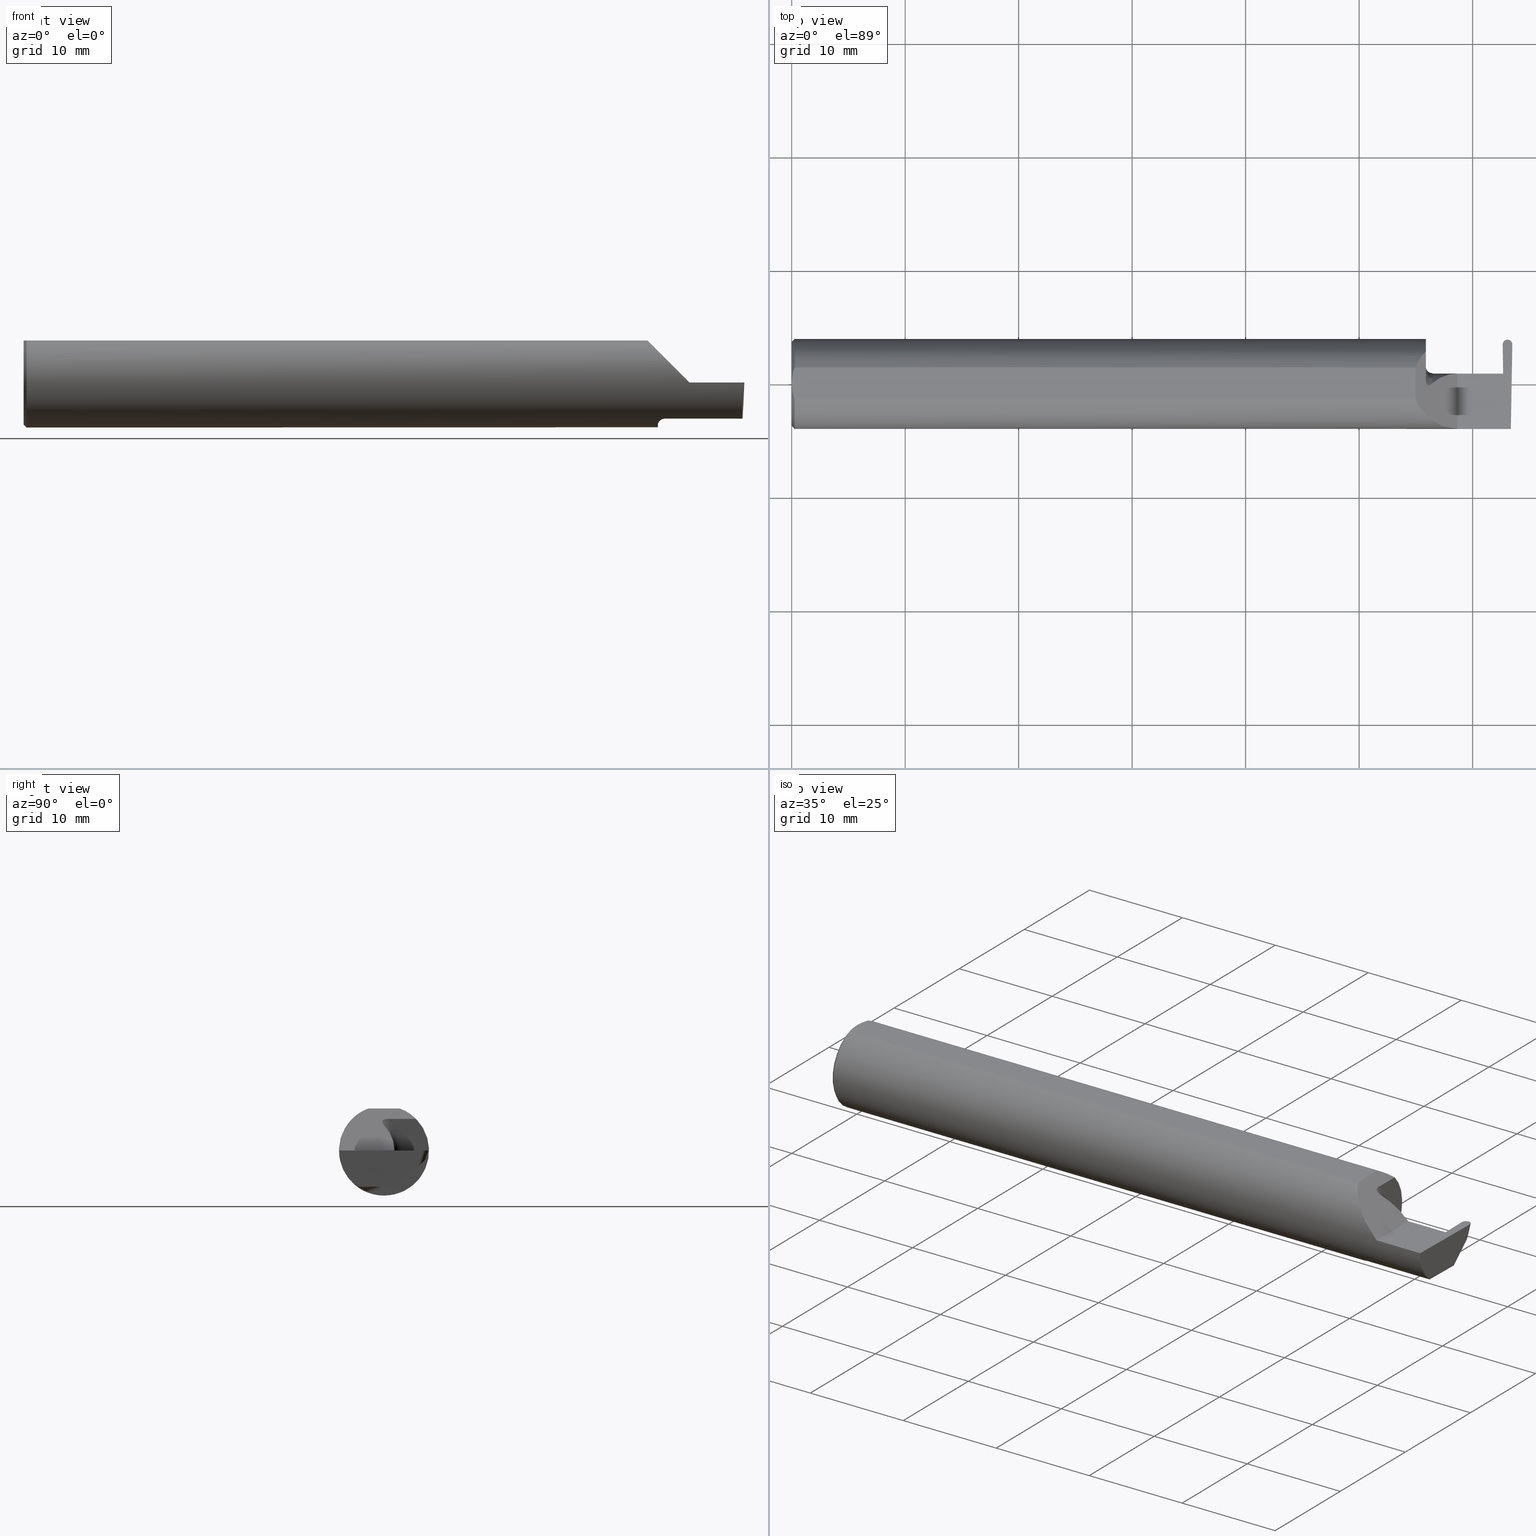
[diagram: canonical four-view strip — front | top / right | iso, engineering-drawing reading convention]
A machine part, canonical four-view strip (front | top / right | iso — engineering-drawing reading convention). The complete STEP part file that produces these views, byte-faithful:
ISO-10303-21;
HEADER;
FILE_DESCRIPTION (( 'STEP AP203' ),
    '1' );
FILE_NAME ('222020-GFR033-4.STEP',
    '2024-06-17T21:42:04',
    ( '' ),
    ( '' ),
    'SwSTEP 2.0',
    'SolidWorks 2022',
    '' );
FILE_SCHEMA (( 'CONFIG_CONTROL_DESIGN' ));
ENDSEC;

DATA;
#1 = AXIS2_PLACEMENT_3D ( 'NONE', #453, #308, #23 ) ;
#2 = APPROVAL_DATE_TIME ( #599, #58 ) ;
#3 = CARTESIAN_POINT ( 'NONE',  ( 2.202026367118635086, -0.07167964287766653841, -0.1387431844349195920 ) ) ;
#4 = CARTESIAN_POINT ( 'NONE',  ( 2.248393398721534098, 0.02424716088558254157, 0.06160660127846561557 ) ) ;
#5 = DIRECTION ( 'NONE',  ( 0.000000000000000000, 0.000000000000000000, -1.000000000000000000 ) ) ;
#6 = ORIENTED_EDGE ( 'NONE', *, *, #64, .T. ) ;
#7 = VECTOR ( 'NONE', #432, 39.37007874015748143 ) ;
#8 = APPROVAL_PERSON_ORGANIZATION ( #104, #338, #379 ) ;
#9 = CIRCLE ( 'NONE', #680, 0.1250000000000001110 ) ;
#10 = ORIENTED_EDGE ( 'NONE', *, *, #562, .T. ) ;
#11 = CARTESIAN_POINT ( 'NONE',  ( 2.499993570548677990, 0.1361256504244730825, 0.0002463248043608053605 ) ) ;
#12 = ORIENTED_EDGE ( 'NONE', *, *, #489, .F. ) ;
#13 = ADVANCED_FACE ( 'NONE', ( #222 ), #66, .T. ) ;
#14 = CARTESIAN_POINT ( 'NONE',  ( 2.200000000000000178, -0.05502817059483715301, -0.1460791239054557433 ) ) ;
#15 = ORIENTED_EDGE ( 'NONE', *, *, #540, .T. ) ;
#16 = VERTEX_POINT ( 'NONE', #208 ) ;
#17 = LINE ( 'NONE', #237, #649 ) ;
#18 = CARTESIAN_POINT ( 'NONE',  ( 2.494884149684813757, -0.1560999999999999888, 0.000000000000000000 ) ) ;
#19 = EDGE_CURVE ( 'NONE', #601, #502, #592, .T. ) ;
#20 = CARTESIAN_POINT ( 'NONE',  ( 2.494102364510032643, 0.04922584398802135747, -0.1250000000000000278 ) ) ;
#21 = ORIENTED_EDGE ( 'NONE', *, *, #645, .F. ) ;
#22 = ORIENTED_EDGE ( 'NONE', *, *, #19, .T. ) ;
#23 = DIRECTION ( 'NONE',  ( 0.000000000000000000, 0.000000000000000000, -1.000000000000000000 ) ) ;
#24 = VECTOR ( 'NONE', #497, 39.37007874015748854 ) ;
#25 = FACE_OUTER_BOUND ( 'NONE', #202, .T. ) ;
#26 = DIRECTION ( 'NONE',  ( -1.000000000000000000, -1.922274392784743754E-16, -0.000000000000000000 ) ) ;
#27 = ORIENTED_EDGE ( 'NONE', *, *, #664, .T. ) ;
#28 = DIRECTION ( 'NONE',  ( -1.000000000000000000, -1.922274392784743754E-16, -0.000000000000000000 ) ) ;
#29 = CARTESIAN_POINT ( 'NONE',  ( 0.01000000000000013205, 0.000000000000000000, -0.1560999999999999888 ) ) ;
#30 = B_SPLINE_CURVE_WITH_KNOTS ( 'NONE', 3,
 ( #174, #62, #288, #169, #165, #216, #3, #486, #230, #14 ),
 .UNSPECIFIED., .F., .F.,
 ( 4, 2, 2, 2, 4 ),
 ( 1.958690481381664333E-07, 0.0003511029445248166499, 0.0007020100200014951254, 0.001052917095478173547, 0.001403824170954851968 ),
 .UNSPECIFIED. ) ;
#31 = FACE_OUTER_BOUND ( 'NONE', #378, .T. ) ;
#32 = ORIENTED_EDGE ( 'NONE', *, *, #586, .T. ) ;
#33 = CARTESIAN_POINT ( 'NONE',  ( 0.006876379561362894709, 0.04610291843171884091, 0.1460999999999998689 ) ) ;
#34 = LINE ( 'NONE', #123, #345 ) ;
#35 = ORIENTED_EDGE ( 'NONE', *, *, #504, .F. ) ;
#36 = CARTESIAN_POINT ( 'NONE',  ( 0.000000000000000000, 0.000000000000000000, 0.000000000000000000 ) ) ;
#37 = EDGE_LOOP ( 'NONE', ( #307, #482, #397, #380, #484, #377, #465, #348, #434, #623, #35 ) ) ;
#38 = DIRECTION ( 'NONE',  ( -1.224646799147353947E-16, 0.000000000000000000, -1.000000000000000000 ) ) ;
#39 = DIRECTION ( 'NONE',  ( 1.000000000000000000, 0.000000000000000000, 0.000000000000000000 ) ) ;
#40 = ORIENTED_EDGE ( 'NONE', *, *, #671, .T. ) ;
#41 = CARTESIAN_POINT ( 'NONE',  ( -3.937007874019685528E-05, 0.1539000000000000090, 0.000000000000000000 ) ) ;
#42 = VECTOR ( 'NONE', #155, 39.37007874015748143 ) ;
#43 = LOCAL_TIME ( 14, 42, 4.000000000000000000, #60 ) ;
#44 = ADVANCED_FACE ( 'NONE', ( #581 ), #416, .T. ) ;
#45 = CARTESIAN_POINT ( 'NONE',  ( 2.171821004789464826, 0.07602423094865468078, 0.1381789952105338670 ) ) ;
#46 = DIRECTION ( 'NONE',  ( 0.000000000000000000, -0.9455185755993165131, 0.3255681544571574215 ) ) ;
#47 = APPROVAL_STATUS ( 'not_yet_approved' ) ;
#48 = CARTESIAN_POINT ( 'NONE',  ( 2.163899999999998602, -0.05497272050753934658, 0.1460999999999998411 ) ) ;
#49 =( BOUNDED_CURVE ( )  B_SPLINE_CURVE ( 3, ( #190, #297, #290, #618 ),
 .UNSPECIFIED., .F., .F. ) 
 B_SPLINE_CURVE_WITH_KNOTS ( ( 4, 4 ),
 ( 1.570796326794900999, 1.636803205333741573 ),
 .UNSPECIFIED. ) 
 CURVE ( )  GEOMETRIC_REPRESENTATION_ITEM ( )  RATIONAL_B_SPLINE_CURVE ( ( 1.000000000000000000, 0.9996369572869184816, 0.9996369572869184816, 1.000000000000000000 ) ) 
 REPRESENTATION_ITEM ( '' )  );
#50 = ADVANCED_FACE ( 'NONE', ( #423 ), #644, .T. ) ;
#51 = CARTESIAN_POINT ( 'NONE',  ( 2.200000000000000178, -0.08910000000000006803, 0.000000000000000000 ) ) ;
#52 = CARTESIAN_POINT ( 'NONE',  ( 2.472736521078112926, -0.01986741890188668466, -0.1250000000000000833 ) ) ;
#53 = AXIS2_PLACEMENT_3D ( 'NONE', #84, #462, #406 ) ;
#54 = CARTESIAN_POINT ( 'NONE',  ( 2.310000000000000053, 0.03589999999999995278, 2.326828918379970872E-17 ) ) ;
#55 = VERTEX_POINT ( 'NONE', #389 ) ;
#56 = CARTESIAN_POINT ( 'NONE',  ( 2.479355668209936692, 0.1851440141128278816, 0.09073920564873141914 ) ) ;
#57 = EDGE_LOOP ( 'NONE', ( #81, #688, #115 ) ) ;
#58 = APPROVAL ( #204, 'UNSPECIFIED' ) ;
#59 = VECTOR ( 'NONE', #647, 39.37007874015748143 ) ;
#60 = COORDINATED_UNIVERSAL_TIME_OFFSET ( 8, 0, .BEHIND. ) ;
#61 = LOCAL_TIME ( 14, 42, 4.000000000000000000, #418 ) ;
#62 = CARTESIAN_POINT ( 'NONE',  ( 2.220298065053172731, -0.09360841750841733533, -0.1249186702281521177 ) ) ;
#63 = ORIENTED_EDGE ( 'NONE', *, *, #71, .F. ) ;
#64 = EDGE_CURVE ( 'NONE', #499, #238, #354, .T. ) ;
#65 = CALENDAR_DATE ( 2024, 17, 6 ) ;
#66 = CONICAL_SURFACE ( 'NONE', #161, 0.1460999999999998411, 0.7853981633974482790 ) ;
#67 = CARTESIAN_POINT ( 'NONE',  ( 2.468866941825129224, 0.1159879026479704311, -0.05823794134005021161 ) ) ;
#68 = ORIENTED_EDGE ( 'NONE', *, *, #93, .T. ) ;
#69 = CARTESIAN_POINT ( 'NONE',  ( 2.497599438174871622, 0.1159879026479704034, -0.05823794134005024631 ) ) ;
#70 = ORIENTED_EDGE ( 'NONE', *, *, #249, .T. ) ;
#71 = EDGE_CURVE ( 'NONE', #404, #502, #393, .T. ) ;
#72 = CARTESIAN_POINT ( 'NONE',  ( 2.473181517275717223, 0.1538999999999999257, 1.831248456795955123E-17 ) ) ;
#73 = VECTOR ( 'NONE', #243, 39.37007874015748854 ) ;
#74 = LINE ( 'NONE', #557, #275 ) ;
#75 = ADVANCED_FACE ( 'NONE', ( #241 ), #402, .F. ) ;
#76 = CARTESIAN_POINT ( 'NONE',  ( 2.200000000000000178, 0.008736813796655707939, 0.1099999999999991124 ) ) ;
#77 = ORIENTED_EDGE ( 'NONE', *, *, #594, .T. ) ;
#78 = CARTESIAN_POINT ( 'NONE',  ( 0.000000000000000000, 0.000000000000000000, 0.1460999999999998689 ) ) ;
#79 = CARTESIAN_POINT ( 'NONE',  ( 2.345733190000000246, -0.09360841750841737696, -0.1249186702281520900 ) ) ;
#80 = VERTEX_POINT ( 'NONE', #543 ) ;
#81 = ORIENTED_EDGE ( 'NONE', *, *, #701, .T. ) ;
#82 = DIRECTION ( 'NONE',  ( -0.9992386149554827179, 0.01744177490282265708, 0.03489949670250104552 ) ) ;
#83 = CARTESIAN_POINT ( 'NONE',  ( 0.0009113193687670144904, -0.01867274705588957071, 0.1460999999999998411 ) ) ;
#84 = CARTESIAN_POINT ( 'NONE',  ( 0.000000000000000000, 0.000000000000000000, 0.000000000000000000 ) ) ;
#85 = EDGE_CURVE ( 'NONE', #542, #630, #129, .T. ) ;
#86 = VERTEX_POINT ( 'NONE', #29 ) ;
#87 = CARTESIAN_POINT ( 'NONE',  ( 2.200000000000000178, 0.1560999999999999888, 0.000000000000000000 ) ) ;
#88 = AXIS2_PLACEMENT_3D ( 'NONE', #134, #296, #195 ) ;
#89 = CC_DESIGN_DATE_AND_TIME_ASSIGNMENT ( #215, #590, ( #132 ) ) ;
#90 = DIRECTION ( 'NONE',  ( -0.01745240643727518845, 0.9998476951563912696, 0.000000000000000000 ) ) ;
#91 = ORIENTED_EDGE ( 'NONE', *, *, #528, .F. ) ;
#92 = CARTESIAN_POINT ( 'NONE',  ( 2.460968164375760381, 0.03569700418831855959, -0.005813039478679222008 ) ) ;
#93 = EDGE_CURVE ( 'NONE', #223, #16, #49, .T. ) ;
#94 =( CONVERSION_BASED_UNIT ( 'INCH', #156 ) LENGTH_UNIT ( ) NAMED_UNIT ( #420 ) );
#95 = CARTESIAN_POINT ( 'NONE',  ( 2.468230857848970228, 0.03589999999999995278, 0.000000000000000000 ) ) ;
#96 = AXIS2_PLACEMENT_3D ( 'NONE', #689, #440, #109 ) ;
#97 = CC_DESIGN_SECURITY_CLASSIFICATION ( #132, ( #264 ) ) ;
#98 = CARTESIAN_POINT ( 'NONE',  ( 0.01000000000000013205, -0.05497272050753933964, 0.1460999999999998689 ) ) ;
#99 = DIRECTION ( 'NONE',  ( -1.000000000000000000, -1.922274392784743754E-16, -0.000000000000000000 ) ) ;
#100 = EDGE_CURVE ( 'NONE', #244, #150, #478, .T. ) ;
#101 = DIRECTION ( 'NONE',  ( 0.000000000000000000, -0.03489949670250104552, -0.9993908270190957621 ) ) ;
#102 = APPROVAL_DATE_TIME ( #118, #338 ) ;
#103 = LINE ( 'NONE', #95, #366 ) ;
#104 = PERSON_AND_ORGANIZATION ( #309, #395 ) ;
#105 = LINE ( 'NONE', #11, #260 ) ;
#106 = ORIENTED_EDGE ( 'NONE', *, *, #419, .F. ) ;
#107 = CYLINDRICAL_SURFACE ( 'NONE', #88, 0.01680000000000000243 ) ;
#108 = AXIS2_PLACEMENT_3D ( 'NONE', #148, #179, #496 ) ;
#109 = DIRECTION ( 'NONE',  ( 0.000000000000000000, 0.000000000000000000, -1.000000000000000000 ) ) ;
#110 = ORIENTED_EDGE ( 'NONE', *, *, #528, .T. ) ;
#111 = EDGE_LOOP ( 'NONE', ( #133, #331, #311 ) ) ;
#112 =( BOUNDED_CURVE ( )  B_SPLINE_CURVE ( 3, ( #591, #4, #652, #595 ),
 .UNSPECIFIED., .F., .F. ) 
 B_SPLINE_CURVE_WITH_KNOTS ( ( 4, 4 ),
 ( 0.8230336921349832302, 1.570796326794896780 ),
 .UNSPECIFIED. ) 
 CURVE ( )  GEOMETRIC_REPRESENTATION_ITEM ( )  RATIONAL_B_SPLINE_CURVE ( ( 1.000000000000000000, 0.9539445215436042069, 0.9539445215436042069, 1.000000000000000000 ) ) 
 REPRESENTATION_ITEM ( '' )  );
#113 = DESIGN_CONTEXT ( 'detailed design', #400, 'design' ) ;
#114 = CYLINDRICAL_SURFACE ( 'NONE', #454, 0.01680000000000000243 ) ;
#115 = ORIENTED_EDGE ( 'NONE', *, *, #436, .T. ) ;
#116 = ADVANCED_FACE ( 'NONE', ( #25 ), #107, .T. ) ;
#117 = ADVANCED_FACE ( 'NONE', ( #500 ), #674, .F. ) ;
#118 = DATE_AND_TIME ( #65, #293 ) ;
#119 = CARTESIAN_POINT ( 'NONE',  ( 2.163899999999998602, -0.05497272050753934658, 0.1460999999999998411 ) ) ;
#120 = VERTEX_POINT ( 'NONE', #349 ) ;
#121 = ORIENTED_EDGE ( 'NONE', *, *, #231, .T. ) ;
#122 = CIRCLE ( 'NONE', #53, 0.1460999999999998411 ) ;
#123 = CARTESIAN_POINT ( 'NONE',  ( 2.474843960782659114, -0.09285012667669295672, -0.1250000000000000278 ) ) ;
#124 = ORIENTED_EDGE ( 'NONE', *, *, #640, .T. ) ;
#125 = ORIENTED_EDGE ( 'NONE', *, *, #191, .T. ) ;
#126 = CARTESIAN_POINT ( 'NONE',  ( 2.466300478715367284, 0.1464913464970357959, 1.915516875273380729E-17 ) ) ;
#127 = CARTESIAN_POINT ( 'NONE',  ( -6.265209250606362652E-17, 0.009396510398413125686, 0.1460999999999998689 ) ) ;
#128 = VECTOR ( 'NONE', #695, 39.37007874015748854 ) ;
#129 = LINE ( 'NONE', #343, #24 ) ;
#130 = AXIS2_PLACEMENT_3D ( 'NONE', #291, #619, #136 ) ;
#131 = CARTESIAN_POINT ( 'NONE',  ( 2.472364015489967759, 0.04922584398802139216, -0.1250000000000000278 ) ) ;
#132 = SECURITY_CLASSIFICATION ( '', '', #657 ) ;
#133 = ORIENTED_EDGE ( 'NONE', *, *, #151, .T. ) ;
#134 = CARTESIAN_POINT ( 'NONE',  ( 2.479355668209936692, 0.1692593020427593520, 0.09620875064361165963 ) ) ;
#135 = CARTESIAN_POINT ( 'NONE',  ( 2.466472809451322412, 0.1361256504244731103, 0.0002463248043607938679 ) ) ;
#136 = DIRECTION ( 'NONE',  ( 1.000000000000000000, 0.000000000000000000, -0.000000000000000000 ) ) ;
#137 = ORIENTED_EDGE ( 'NONE', *, *, #460, .F. ) ;
#138 = CARTESIAN_POINT ( 'NONE',  ( 2.468230857848970228, 0.03589999999999995278, 0.000000000000000000 ) ) ;
#139 = CARTESIAN_POINT ( 'NONE',  ( 2.466468933666375207, 0.1368405688172235068, 0.000000000000000000 ) ) ;
#140 = VERTEX_POINT ( 'NONE', #138 ) ;
#141 =( BOUNDED_CURVE ( )  B_SPLINE_CURVE ( 3, ( #376, #600, #605, #119 ),
 .UNSPECIFIED., .F., .F. ) 
 B_SPLINE_CURVE_WITH_KNOTS ( ( 4, 4 ),
 ( 4.712388980384689674, 5.923303634979667720 ),
 .UNSPECIFIED. ) 
 CURVE ( )  GEOMETRIC_REPRESENTATION_ITEM ( )  RATIONAL_B_SPLINE_CURVE ( ( 1.000000000000000000, 0.8814946008038391234, 0.8814946008038391234, 1.000000000000000000 ) ) 
 REPRESENTATION_ITEM ( '' )  );
#142 = CARTESIAN_POINT ( 'NONE',  ( 2.483396179931517178, 0.1539000000000000090, 0.000000000000000000 ) ) ;
#143 = ADVANCED_FACE ( 'NONE', ( #353 ), #550, .F. ) ;
#144 = ADVANCED_FACE ( 'NONE', ( #398 ), #312, .F. ) ;
#145 = PERSON_AND_ORGANIZATION_ROLE ( 'design_owner' ) ;
#146 = EDGE_LOOP ( 'NONE', ( #546, #438, #352, #511 ) ) ;
#147 = ORIENTED_EDGE ( 'NONE', *, *, #276, .F. ) ;
#148 = CARTESIAN_POINT ( 'NONE',  ( 2.474034498089313860, -2.440349358338679053, -0.07704551980719613613 ) ) ;
#149 =( NAMED_UNIT ( * ) SI_UNIT ( $, .STERADIAN. ) SOLID_ANGLE_UNIT ( ) );
#150 = VERTEX_POINT ( 'NONE', #142 ) ;
#151 = EDGE_CURVE ( 'NONE', #181, #574, #572, .T. ) ;
#152 = DIRECTION ( 'NONE',  ( -0.01745240643727519192, 0.9998476951563914916, -0.000000000000000000 ) ) ;
#153 = AXIS2_PLACEMENT_3D ( 'NONE', #245, #609, #615 ) ;
#154 = DIRECTION ( 'NONE',  ( -1.000000000000000000, -1.922274392784743754E-16, -0.000000000000000000 ) ) ;
#155 = DIRECTION ( 'NONE',  ( 1.000000000000000000, -0.000000000000000000, -0.000000000000000000 ) ) ;
#156 = LENGTH_MEASURE_WITH_UNIT ( LENGTH_MEASURE( 0.02539999999999999897 ), #629 );
#157 = CARTESIAN_POINT ( 'NONE',  ( 3.749399456654646757E-32, -0.1560999999999999333, 3.061616997868383634E-16 ) ) ;
#158 = AXIS2_PLACEMENT_3D ( 'NONE', #41, #46, #475 ) ;
#159 = CARTESIAN_POINT ( 'NONE',  ( 2.494884149684813757, -0.1560999999999999888, 0.000000000000000000 ) ) ;
#160 = LINE ( 'NONE', #698, #519 ) ;
#161 = AXIS2_PLACEMENT_3D ( 'NONE', #217, #425, #5 ) ;
#162 = CARTESIAN_POINT ( 'NONE',  ( 2.468075038322403714, 0.1311060022846998185, -0.04311984170332067851 ) ) ;
#163 = APPROVAL_PERSON_ORGANIZATION ( #691, #58, #479 ) ;
#164 = COORDINATED_UNIVERSAL_TIME_OFFSET ( 8, 0, .BEHIND. ) ;
#165 = CARTESIAN_POINT ( 'NONE',  ( 2.206963077135974949, -0.08291057444783000996, -0.1323284214741864140 ) ) ;
#166 = EDGE_LOOP ( 'NONE', ( #314, #347, #490, #683, #178, #612 ) ) ;
#167 = EDGE_CURVE ( 'NONE', #604, #234, #364, .T. ) ;
#168 = SHAPE_DEFINITION_REPRESENTATION ( #273, #459 ) ;
#169 = CARTESIAN_POINT ( 'NONE',  ( 2.209390565699349995, -0.08631243322371089099, -0.1301077001157306956 ) ) ;
#170 = ORIENTED_EDGE ( 'NONE', *, *, #641, .F. ) ;
#171 = CALENDAR_DATE ( 2024, 17, 6 ) ;
#172 = DIRECTION ( 'NONE',  ( -0.01745240643727600724, -0.9998476951563914916, 0.000000000000000000 ) ) ;
#173 = ORIENTED_EDGE ( 'NONE', *, *, #696, .T. ) ;
#174 = CARTESIAN_POINT ( 'NONE',  ( 2.225000000000000089, -0.09360841750841730757, -0.1249186702281521594 ) ) ;
#175 = EDGE_LOOP ( 'NONE', ( #77, #125, #566, #287, #124 ) ) ;
#176 = AXIS2_PLACEMENT_3D ( 'NONE', #570, #28, #189 ) ;
#177 = CARTESIAN_POINT ( 'NONE',  ( 2.225000000000000089, 0.002551513899117411211, 0.08499999999999943712 ) ) ;
#178 = ORIENTED_EDGE ( 'NONE', *, *, #381, .T. ) ;
#179 = DIRECTION ( 'NONE',  ( 0.9993699743034455407, 0.001238639365660562522, 0.03546999060124570585 ) ) ;
#180 = LINE ( 'NONE', #622, #521 ) ;
#181 = VERTEX_POINT ( 'NONE', #628 ) ;
#182 = CARTESIAN_POINT ( 'NONE',  ( 0.0009290501461040111091, 0.01879395969143608097, 0.1460999999999998689 ) ) ;
#183 = CARTESIAN_POINT ( 'NONE',  ( 2.493284862724282736, 0.1538999999999999257, -1.238434607557906304E-18 ) ) ;
#184 = AXIS2_PLACEMENT_3D ( 'NONE', #692, #414, #527 ) ;
#185 = CARTESIAN_POINT ( 'NONE',  ( 2.689688574201023918, -0.08909999999999938802, -0.1250000000000000278 ) ) ;
#186 = VECTOR ( 'NONE', #472, 39.37007874015748143 ) ;
#187 = ORIENTED_EDGE ( 'NONE', *, *, #562, .F. ) ;
#188 =( BOUNDED_CURVE ( )  B_SPLINE_CURVE ( 3, ( #686, #554, #294, #302 ),
 .UNSPECIFIED., .F., .T. ) 
 B_SPLINE_CURVE_WITH_KNOTS ( ( 4, 4 ),
 ( 3.188737678545093157, 4.698656506723038362 ),
 .UNSPECIFIED. ) 
 CURVE ( )  GEOMETRIC_REPRESENTATION_ITEM ( )  RATIONAL_B_SPLINE_CURVE ( ( 1.000000000000000000, 0.8188662370985357875, 0.8188662370985357875, 1.000000000000000000 ) ) 
 REPRESENTATION_ITEM ( '' )  );
#189 = DIRECTION ( 'NONE',  ( 1.922274392784743754E-16, -1.000000000000000000, 0.000000000000000000 ) ) ;
#190 = CARTESIAN_POINT ( 'NONE',  ( 2.483233189999999535, 0.1525290440048721052, -0.003981545313865254496 ) ) ;
#191 = EDGE_CURVE ( 'NONE', #280, #80, #74, .T. ) ;
#192 = CARTESIAN_POINT ( 'NONE',  ( 2.163899999999998602, 0.05497272050753934658, 0.1460999999999998411 ) ) ;
#193 = EDGE_CURVE ( 'NONE', #86, #234, #422, .T. ) ;
#194 = ORIENTED_EDGE ( 'NONE', *, *, #663, .F. ) ;
#195 = DIRECTION ( 'NONE',  ( 0.000000000000000000, -0.9455185755993165131, 0.3255681544571575881 ) ) ;
#196 =( BOUNDED_CURVE ( )  B_SPLINE_CURVE ( 3, ( #253, #72, #126, #339 ),
 .UNSPECIFIED., .F., .F. ) 
 B_SPLINE_CURVE_WITH_KNOTS ( ( 4, 4 ),
 ( 6.171327673818501225, 7.747253380535273237 ),
 .UNSPECIFIED. ) 
 CURVE ( )  GEOMETRIC_REPRESENTATION_ITEM ( )  RATIONAL_B_SPLINE_CURVE ( ( 1.000000000000000000, 0.8035272986452591804, 0.8035272986452591804, 1.000000000000000000 ) ) 
 REPRESENTATION_ITEM ( '' )  );
#197 = DIRECTION ( 'NONE',  ( -1.000000000000000000, -0.000000000000000000, -0.000000000000000000 ) ) ;
#198 = CARTESIAN_POINT ( 'NONE',  ( 0.000000000000000000, 0.000000000000000000, 0.1460999999999998689 ) ) ;
#199 = ORIENTED_EDGE ( 'NONE', *, *, #594, .F. ) ;
#200 = MANIFOLD_SOLID_BREP ( 'Radii', #582 ) ;
#201 = ADVANCED_FACE ( 'NONE', ( #561 ), #252, .T. ) ;
#202 = EDGE_LOOP ( 'NONE', ( #137, #63, #360, #565, #68 ) ) ;
#203 = DIRECTION ( 'NONE',  ( 0.000000000000000000, 1.000000000000000000, 0.000000000000000000 ) ) ;
#204 = APPROVAL_STATUS ( 'not_yet_approved' ) ;
#205 = CARTESIAN_POINT ( 'NONE',  ( -3.937007874019685528E-05, 0.04922584398802136441, -0.1250000000000000278 ) ) ;
#206 =( NAMED_UNIT ( * ) PLANE_ANGLE_UNIT ( ) SI_UNIT ( $, .RADIAN. ) );
#207 = CARTESIAN_POINT ( 'NONE',  ( 0.000000000000000000, 0.000000000000000000, 0.000000000000000000 ) ) ;
#208 = CARTESIAN_POINT ( 'NONE',  ( 2.483233190000000423, 0.1431668316216276604, -0.03105901236639268745 ) ) ;
#209 = LINE ( 'NONE', #157, #638 ) ;
#210 = DIRECTION ( 'NONE',  ( 0.000000000000000000, -1.000000000000000000, 0.000000000000000000 ) ) ;
#211 = EDGE_CURVE ( 'NONE', #326, #604, #669, .T. ) ;
#212 = CARTESIAN_POINT ( 'NONE',  ( 2.491661639235123182, -0.09060321336276788706, -0.1250000000000001110 ) ) ;
#213 = CARTESIAN_POINT ( 'NONE',  ( 2.464059707644674191, 0.2077620204123533376, 0.03353617642433374263 ) ) ;
#214 = CONICAL_SURFACE ( 'NONE', #153, 0.1460999999999998411, 0.7853981633974482790 ) ;
#215 = DATE_AND_TIME ( #171, #520 ) ;
#216 = CARTESIAN_POINT ( 'NONE',  ( 2.203298581922916277, -0.07564908586346459629, -0.1366096273808739825 ) ) ;
#217 = CARTESIAN_POINT ( 'NONE',  ( 0.000000000000000000, 0.000000000000000000, 0.000000000000000000 ) ) ;
#218 =( BOUNDED_CURVE ( )  B_SPLINE_CURVE ( 3, ( #401, #624, #451, #18 ),
 .UNSPECIFIED., .F., .F. ) 
 B_SPLINE_CURVE_WITH_KNOTS ( ( 4, 4 ),
 ( 0.1796232990704061949, 1.107331509589571494 ),
 .UNSPECIFIED. ) 
 CURVE ( )  GEOMETRIC_REPRESENTATION_ITEM ( )  RATIONAL_B_SPLINE_CURVE ( ( 1.000000000000000000, 0.9295565493311497285, 0.9295565493311497285, 1.000000000000000000 ) ) 
 REPRESENTATION_ITEM ( '' )  );
#219 = PRODUCT_RELATED_PRODUCT_CATEGORY ( 'detail', '', ( #357 ) ) ;
#220 = PERSON_AND_ORGANIZATION_ROLE ( 'design_supplier' ) ;
#221 = EDGE_CURVE ( 'NONE', #333, #383, #218, .T. ) ;
#222 = FACE_OUTER_BOUND ( 'NONE', #146, .T. ) ;
#223 = VERTEX_POINT ( 'NONE', #255 ) ;
#224 = VECTOR ( 'NONE', #328, 39.37007874015748854 ) ;
#225 = VECTOR ( 'NONE', #639, 39.37007874015748854 ) ;
#226 = PERSON_AND_ORGANIZATION ( #309, #395 ) ;
#227 = FACE_OUTER_BOUND ( 'NONE', #516, .T. ) ;
#228 = ORIENTED_EDGE ( 'NONE', *, *, #504, .T. ) ;
#229 = PERSON_AND_ORGANIZATION ( #309, #395 ) ;
#230 = CARTESIAN_POINT ( 'NONE',  ( 2.199999999999997957, -0.05933838711026684365, -0.1444554604868197589 ) ) ;
#231 = EDGE_CURVE ( 'NONE', #286, #262, #313, .T. ) ;
#232 = ORIENTED_EDGE ( 'NONE', *, *, #19, .F. ) ;
#233 = CARTESIAN_POINT ( 'NONE',  ( 2.468230857848970228, 0.03589999999999995278, 0.000000000000000000 ) ) ;
#234 = VERTEX_POINT ( 'NONE', #567 ) ;
#235 = ORIENTED_EDGE ( 'NONE', *, *, #641, .T. ) ;
#236 = DIRECTION ( 'NONE',  ( 0.000000000000000000, 0.000000000000000000, 1.000000000000000000 ) ) ;
#237 = CARTESIAN_POINT ( 'NONE',  ( 2.468230857848970228, 0.03589999999999995278, 0.000000000000000000 ) ) ;
#238 = VERTEX_POINT ( 'NONE', #687 ) ;
#239 = DIRECTION ( 'NONE',  ( 0.03490480639812536257, 0.000000000000000000, 0.9993906415863165194 ) ) ;
#240 = ORIENTED_EDGE ( 'NONE', *, *, #334, .T. ) ;
#241 = FACE_OUTER_BOUND ( 'NONE', #487, .T. ) ;
#242 = VECTOR ( 'NONE', #203, 39.37007874015748143 ) ;
#243 = DIRECTION ( 'NONE',  ( -0.01745240643727600377, -0.9998476951563912696, 0.000000000000000000 ) ) ;
#244 = VERTEX_POINT ( 'NONE', #356 ) ;
#245 = CARTESIAN_POINT ( 'NONE',  ( 0.000000000000000000, 0.000000000000000000, 0.000000000000000000 ) ) ;
#246 = PRODUCT_DEFINITION ( 'UNKNOWN', '', #264, #113 ) ;
#247 = CARTESIAN_POINT ( 'NONE',  ( 2.499983486910334118, 0.1360408339924935039, 0.000000000000000000 ) ) ;
#248 = CARTESIAN_POINT ( 'NONE',  ( 2.200000000000000178, 0.000000000000000000, 0.000000000000000000 ) ) ;
#249 = EDGE_CURVE ( 'NONE', #604, #326, #122, .T. ) ;
#250 = VECTOR ( 'NONE', #172, 39.37007874015747433 ) ;
#251 = CARTESIAN_POINT ( 'NONE',  ( 2.207282016264096480, -0.005785875156140328317, 0.1027179837359029485 ) ) ;
#252 = PLANE ( 'NONE',  #384 ) ;
#253 = CARTESIAN_POINT ( 'NONE',  ( 2.483070200068483224, 0.1539000000000000090, 0.000000000000000000 ) ) ;
#254 = ORIENTED_EDGE ( 'NONE', *, *, #585, .F. ) ;
#255 = CARTESIAN_POINT ( 'NONE',  ( 2.483233189999999535, 0.1525290440048721052, -0.003981545313865254496 ) ) ;
#256 = ADVANCED_FACE ( 'NONE', ( #388 ), #214, .T. ) ;
#257 = APPLICATION_PROTOCOL_DEFINITION ( 'international standard', 'config_control_design', 1994, #400 ) ;
#258 = ORIENTED_EDGE ( 'NONE', *, *, #407, .T. ) ;
#259 = DIRECTION ( 'NONE',  ( -1.000000000000000000, 0.000000000000000000, 1.224646799147353947E-16 ) ) ;
#260 = VECTOR ( 'NONE', #325, 39.37007874015748143 ) ;
#261 = DATE_AND_TIME ( #322, #61 ) ;
#262 = VERTEX_POINT ( 'NONE', #48 ) ;
#263 = DIRECTION ( 'NONE',  ( -1.000000000000000000, -1.922274392784743754E-16, -0.000000000000000000 ) ) ;
#264 = PRODUCT_DEFINITION_FORMATION_WITH_SPECIFIED_SOURCE ( 'ANY', '', #357, .NOT_KNOWN. ) ;
#265 = LINE ( 'NONE', #643, #242 ) ;
#266 = VERTEX_POINT ( 'NONE', #365 ) ;
#267 = COORDINATED_UNIVERSAL_TIME_OFFSET ( 8, 0, .BEHIND. ) ;
#268 = PLANE ( 'NONE',  #158 ) ;
#269 = EDGE_CURVE ( 'NONE', #262, #627, #265, .T. ) ;
#270 = ADVANCED_FACE ( 'NONE', ( #320 ), #584, .F. ) ;
#271 = APPLICATION_PROTOCOL_DEFINITION ( 'international standard', 'config_control_design', 1994, #476 ) ;
#272 = CARTESIAN_POINT ( 'NONE',  ( 2.491636351762904766, -0.09210618219364741233, -0.1249728871357008164 ) ) ;
#273 = PRODUCT_DEFINITION_SHAPE ( 'NONE', 'NONE',  #246 ) ;
#274 = CARTESIAN_POINT ( 'NONE',  ( 2.470997940024109774, 0.03076608555686829310, -0.07778349322819322342 ) ) ;
#275 = VECTOR ( 'NONE', #392, 39.37007874015748854 ) ;
#276 = EDGE_CURVE ( 'NONE', #470, #181, #509, .T. ) ;
#277 = LINE ( 'NONE', #488, #250 ) ;
#278 = EDGE_LOOP ( 'NONE', ( #70, #606 ) ) ;
#279 = LINE ( 'NONE', #233, #7 ) ;
#280 = VERTEX_POINT ( 'NONE', #634 ) ;
#281 = AXIS2_PLACEMENT_3D ( 'NONE', #512, #38, #259 ) ;
#282 = LOCAL_TIME ( 14, 42, 4.000000000000000000, #267 ) ;
#283 = UNCERTAINTY_MEASURE_WITH_UNIT (LENGTH_MEASURE( 1.000000000000000082E-05 ), #94, 'distance_accuracy_value', 'NONE');
#284 = B_SPLINE_CURVE_WITH_KNOTS ( 'NONE', 3,
 ( #363, #92, #603, #658 ),
 .UNSPECIFIED., .F., .F.,
 ( 4, 4 ),
 ( 0.000000000000000000, 1.000000000000000000 ),
 .UNSPECIFIED. ) ;
#285 = PLANE ( 'NONE',  #394 ) ;
#286 = VERTEX_POINT ( 'NONE', #98 ) ;
#287 = ORIENTED_EDGE ( 'NONE', *, *, #298, .T. ) ;
#288 = CARTESIAN_POINT ( 'NONE',  ( 2.215963332554101495, -0.09167217634395836978, -0.1263885352504912352 ) ) ;
#289 = ORIENTED_EDGE ( 'NONE', *, *, #71, .T. ) ;
#290 = CARTESIAN_POINT ( 'NONE',  ( 2.483233190000000423, 0.1462951423427373832, -0.02204863939784805840 ) ) ;
#291 = CARTESIAN_POINT ( 'NONE',  ( 2.814752029381861309, 0.1560999999999999888, 0.1460999999999998689 ) ) ;
#292 = CARTESIAN_POINT ( 'NONE',  ( 0.000000000000000000, 0.000000000000000000, 0.000000000000000000 ) ) ;
#293 = LOCAL_TIME ( 14, 42, 4.000000000000000000, #650 ) ;
#294 = CARTESIAN_POINT ( 'NONE',  ( 2.498391341677597133, 0.1311060022846997908, -0.04311984170332067851 ) ) ;
#295 = CC_DESIGN_PERSON_AND_ORGANIZATION_ASSIGNMENT ( #515, #697, ( #246 ) ) ;
#296 = DIRECTION ( 'NONE',  ( -0.03867711768362980251, 0.3253245514560481610, 0.9448111011136605120 ) ) ;
#297 = CARTESIAN_POINT ( 'NONE',  ( 2.483233190000000423, 0.1494170131762762033, -0.01301953909793605348 ) ) ;
#298 = EDGE_CURVE ( 'NONE', #601, #630, #471, .T. ) ;
#299 = CARTESIAN_POINT ( 'NONE',  ( -6.292721147515215909E-17, -0.009387766318748835132, 0.1460999999999998689 ) ) ;
#300 = VERTEX_POINT ( 'NONE', #318 ) ;
#301 = DIRECTION ( 'NONE',  ( -1.922274392784743754E-16, 1.000000000000000000, 0.000000000000000000 ) ) ;
#302 = CARTESIAN_POINT ( 'NONE',  ( 2.497599438174871622, 0.1159879026479704034, -0.05823794134005024631 ) ) ;
#303 = ORIENTED_EDGE ( 'NONE', *, *, #167, .F. ) ;
#304 = ORIENTED_EDGE ( 'NONE', *, *, #598, .T. ) ;
#305 = DIRECTION ( 'NONE',  ( 1.000000000000000000, 1.922274392784743754E-16, 0.000000000000000000 ) ) ;
#306 = DIRECTION ( 'NONE',  ( 0.9992386149554827179, 0.01744177490282184176, 0.03489949670250104552 ) ) ;
#307 = ORIENTED_EDGE ( 'NONE', *, *, #598, .F. ) ;
#308 = DIRECTION ( 'NONE',  ( 1.000000000000000000, 0.000000000000000000, 0.000000000000000000 ) ) ;
#309 = PERSON ( 'UNSPECIFIED', 'UNSPECIFIED', 'UNSPECIFIED', ('UNSPECIFIED'), ('UNSPECIFIED'), ('UNSPECIFIED') ) ;
#310 = LINE ( 'NONE', #579, #186 ) ;
#311 = ORIENTED_EDGE ( 'NONE', *, *, #276, .T. ) ;
#312 = TOROIDAL_SURFACE ( 'NONE', #176, 0.1500000000000000500, 0.02499999999999993894 ) ;
#313 = LINE ( 'NONE', #668, #532 ) ;
#314 = ORIENTED_EDGE ( 'NONE', *, *, #85, .F. ) ;
#315 = FACE_OUTER_BOUND ( 'NONE', #433, .T. ) ;
#316 = VECTOR ( 'NONE', #369, 39.37007874015748854 ) ;
#317 = PERSON_AND_ORGANIZATION ( #309, #395 ) ;
#318 = CARTESIAN_POINT ( 'NONE',  ( 2.310000000000000053, -0.1560999999999999888, 2.326828918379970872E-17 ) ) ;
#319 =( BOUNDED_CURVE ( )  B_SPLINE_CURVE ( 3, ( #330, #52, #274, #424 ),
 .UNSPECIFIED., .F., .T. ) 
 B_SPLINE_CURVE_WITH_KNOTS ( ( 4, 4 ),
 ( 3.176499238629674426, 4.677482395344782162 ),
 .UNSPECIFIED. ) 
 CURVE ( )  GEOMETRIC_REPRESENTATION_ITEM ( )  RATIONAL_B_SPLINE_CURVE ( ( 1.000000000000000000, 0.8209024677461173036, 0.8209024677461173036, 1.000000000000000000 ) ) 
 REPRESENTATION_ITEM ( '' )  );
#320 = FACE_OUTER_BOUND ( 'NONE', #656, .T. ) ;
#321 = EDGE_CURVE ( 'NONE', #326, #86, #575, .T. ) ;
#322 = CALENDAR_DATE ( 2024, 17, 6 ) ;
#323 = FACE_OUTER_BOUND ( 'NONE', #175, .T. ) ;
#324 = ADVANCED_FACE ( 'NONE', ( #323 ), #580, .F. ) ;
#325 = DIRECTION ( 'NONE',  ( 0.03867711768363006619, 0.3253245514560481610, 0.9448111011136606230 ) ) ;
#326 = VERTEX_POINT ( 'NONE', #525 ) ;
#327 = AXIS2_PLACEMENT_3D ( 'NONE', #410, #631, #101 ) ;
#328 = DIRECTION ( 'NONE',  ( -0.03867711768362980251, 0.3253245514560481610, 0.9448111011136605120 ) ) ;
#329 = VERTEX_POINT ( 'NONE', #421 ) ;
#330 = CARTESIAN_POINT ( 'NONE',  ( 2.472822329339857461, -0.08910000000000001252, -0.1250000000000000555 ) ) ;
#331 = ORIENTED_EDGE ( 'NONE', *, *, #585, .T. ) ;
#332 = DIRECTION ( 'NONE',  ( -0.7071067811865436870, 0.000000000000000000, -0.7071067811865513475 ) ) ;
#333 = VERTEX_POINT ( 'NONE', #576 ) ;
#334 = EDGE_CURVE ( 'NONE', #80, #329, #103, .T. ) ;
#335 = ADVANCED_FACE ( 'NONE', ( #523 ), #268, .F. ) ;
#336 = CARTESIAN_POINT ( 'NONE',  ( 2.200000000000000178, 0.01288039027185680294, 0.1099999999999990014 ) ) ;
#337 = ORIENTED_EDGE ( 'NONE', *, *, #334, .F. ) ;
#338 = APPROVAL ( #602, 'UNSPECIFIED' ) ;
#339 = CARTESIAN_POINT ( 'NONE',  ( 2.466482893089666284, 0.1360408339924935039, 0.000000000000000000 ) ) ;
#340 = ORIENTED_EDGE ( 'NONE', *, *, #407, .F. ) ;
#341 = DIRECTION ( 'NONE',  ( 1.000000000000000000, 0.000000000000000000, 0.000000000000000000 ) ) ;
#342 = EDGE_CURVE ( 'NONE', #140, #404, #160, .T. ) ;
#343 = CARTESIAN_POINT ( 'NONE',  ( 2.495602440342458372, 0.07786354519681681907, -0.09636229879120425390 ) ) ;
#344 = VECTOR ( 'NONE', #444, 39.37007874015748143 ) ;
#345 = VECTOR ( 'NONE', #90, 39.37007874015748854 ) ;
#346 = CARTESIAN_POINT ( 'NONE',  ( 0.006903212852521220001, -0.04617911398309930415, 0.1460999999999998689 ) ) ;
#347 = ORIENTED_EDGE ( 'NONE', *, *, #419, .T. ) ;
#348 = ORIENTED_EDGE ( 'NONE', *, *, #671, .F. ) ;
#349 = CARTESIAN_POINT ( 'NONE',  ( 2.460866666469919473, 0.03559550628247787341, -0.008719559218018849492 ) ) ;
#350 = CARTESIAN_POINT ( 'NONE',  ( 2.483396179931517178, 0.1539000000000000090, 0.000000000000000000 ) ) ;
#351 = DIRECTION ( 'NONE',  ( -0.03549161113179505334, 0.03487750912278164694, 0.9987611851171729338 ) ) ;
#352 = ORIENTED_EDGE ( 'NONE', *, *, #167, .T. ) ;
#353 = FACE_OUTER_BOUND ( 'NONE', #464, .T. ) ;
#354 = LINE ( 'NONE', #558, #548 ) ;
#355 = CARTESIAN_POINT ( 'NONE',  ( 2.200429651027560496, 0.004497598019127945976, 0.1095703489724388358 ) ) ;
#356 = CARTESIAN_POINT ( 'NONE',  ( 2.499983486910334118, 0.1360408339924935039, 0.000000000000000000 ) ) ;
#357 = PRODUCT ( '222020-GFR033-4', '222020-GFR033-4', '', ( #633 ) ) ;
#358 = PERSON_AND_ORGANIZATION ( #309, #395 ) ;
#359 = ORIENTED_EDGE ( 'NONE', *, *, #413, .F. ) ;
#360 = ORIENTED_EDGE ( 'NONE', *, *, #563, .F. ) ;
#361 = ORIENTED_EDGE ( 'NONE', *, *, #298, .F. ) ;
#362 = AXIS2_PLACEMENT_3D ( 'NONE', #36, #458, #684 ) ;
#363 = CARTESIAN_POINT ( 'NONE',  ( 2.460866666469919473, 0.03559550628247787341, -0.008719559218018849492 ) ) ;
#364 = B_SPLINE_CURVE_WITH_KNOTS ( 'NONE', 3,
 ( #78, #127, #182, #621, #33, #446 ),
 .UNSPECIFIED., .F., .F.,
 ( 4, 2, 4 ),
 ( 0.002914391749015463051, 0.003623333355014857204, 0.004332274961014251358 ),
 .UNSPECIFIED. ) ;
#365 = CARTESIAN_POINT ( 'NONE',  ( 2.225000000000000089, -0.09360841750841730757, -0.1249186702281521594 ) ) ;
#366 = VECTOR ( 'NONE', #700, 39.37007874015748143 ) ;
#367 = CARTESIAN_POINT ( 'NONE',  ( 2.184040990036858698, 0.09490756670483446733, 0.1259590099631404669 ) ) ;
#368 = ADVANCED_FACE ( 'NONE', ( #642 ), #473, .F. ) ;
#369 = DIRECTION ( 'NONE',  ( 0.7071067811865474617, 0.000000000000000000, -0.7071067811865474617 ) ) ;
#370 = APPROVAL_ROLE ( '' ) ;
#371 = CARTESIAN_POINT ( 'NONE',  ( 2.491612023732480807, -0.09360841750841733533, -0.1249186702281520900 ) ) ;
#372 = EDGE_CURVE ( 'NONE', #383, #300, #209, .T. ) ;
#373 = DIRECTION ( 'NONE',  ( -1.000000000000000000, -0.000000000000000000, -0.000000000000000000 ) ) ;
#374 = CALENDAR_DATE ( 2024, 17, 6 ) ;
#375 = CARTESIAN_POINT ( 'NONE',  ( 2.200000000000000178, 0.01288039027185680294, 0.1099999999999990014 ) ) ;
#376 = CARTESIAN_POINT ( 'NONE',  ( 2.310000000000000053, -0.1560999999999999888, 2.326828918379970872E-17 ) ) ;
#377 = ORIENTED_EDGE ( 'NONE', *, *, #413, .T. ) ;
#378 = EDGE_LOOP ( 'NONE', ( #538, #289, #232, #194, #240, #32 ) ) ;
#379 = APPROVAL_ROLE ( '' ) ;
#380 = ORIENTED_EDGE ( 'NONE', *, *, #514, .T. ) ;
#381 = EDGE_CURVE ( 'NONE', #333, #55, #571, .T. ) ;
#382 = CARTESIAN_POINT ( 'NONE',  ( 2.479681160433359288, 0.1067671721376754618, -0.08528157279586306982 ) ) ;
#383 = VERTEX_POINT ( 'NONE', #159 ) ;
#384 = AXIS2_PLACEMENT_3D ( 'NONE', #87, #507, #301 ) ;
#385 = ADVANCED_FACE ( 'NONE', ( #315 ), #588, .F. ) ;
#386 = DIRECTION ( 'NONE',  ( 1.922274392784743754E-16, -1.000000000000000000, -1.922274392784723293E-16 ) ) ;
#387 = EDGE_LOOP ( 'NONE', ( #106, #655, #506, #653, #597 ) ) ;
#388 = FACE_OUTER_BOUND ( 'NONE', #660, .T. ) ;
#389 = CARTESIAN_POINT ( 'NONE',  ( 2.491687877921971328, -0.08909999999999938802, -0.1250000000000000278 ) ) ;
#390 = CARTESIAN_POINT ( 'NONE',  ( 0.01000000000000013205, -0.05497272050753933964, 0.1460999999999998689 ) ) ;
#391 = ORIENTED_EDGE ( 'NONE', *, *, #645, .T. ) ;
#392 = DIRECTION ( 'NONE',  ( -0.001239419280281360905, 0.9999992319196288060, 0.000000000000000000 ) ) ;
#393 = LINE ( 'NONE', #135, #508 ) ;
#394 = AXIS2_PLACEMENT_3D ( 'NONE', #437, #332, #537 ) ;
#395 = ORGANIZATION ( 'UNSPECIFIED', 'UNSPECIFIED', '' ) ;
#396 = DIRECTION ( 'NONE',  ( -1.000000000000000000, -1.922274392784743754E-16, -0.000000000000000000 ) ) ;
#397 = ORIENTED_EDGE ( 'NONE', *, *, #372, .T. ) ;
#398 = FACE_OUTER_BOUND ( 'NONE', #409, .T. ) ;
#399 = PLANE ( 'NONE',  #617 ) ;
#400 = APPLICATION_CONTEXT ( 'configuration controlled 3d designs of mechanical parts and assemblies' ) ;
#401 = CARTESIAN_POINT ( 'NONE',  ( 2.491612023732480807, -0.09360841750841733533, -0.1249186702281520900 ) ) ;
#402 = PLANE ( 'NONE',  #607 ) ;
#403 = CARTESIAN_POINT ( 'NONE',  ( 2.214607719359375615, -0.005072214564753888856, 0.09539228064062331425 ) ) ;
#404 = VERTEX_POINT ( 'NONE', #466 ) ;
#405 = ORIENTED_EDGE ( 'NONE', *, *, #514, .F. ) ;
#406 = DIRECTION ( 'NONE',  ( 0.000000000000000000, 0.000000000000000000, -1.000000000000000000 ) ) ;
#407 = EDGE_CURVE ( 'NONE', #120, #238, #284, .T. ) ;
#408 = APPROVAL_DATE_TIME ( #474, #555 ) ;
#409 = EDGE_LOOP ( 'NONE', ( #228, #147, #10, #173 ) ) ;
#410 = CARTESIAN_POINT ( 'NONE',  ( 2.468230857848970228, 0.03589999999999995278, 0.000000000000000000 ) ) ;
#411 = CARTESIAN_POINT ( 'NONE',  ( 2.225000000000000089, -0.08910000000000006803, 0.000000000000000000 ) ) ;
#412 = AXIS2_PLACEMENT_3D ( 'NONE', #679, #82, #239 ) ;
#413 = EDGE_CURVE ( 'NONE', #286, #86, #536, .T. ) ;
#414 = DIRECTION ( 'NONE',  ( 0.000000000000000000, 0.000000000000000000, 1.000000000000000000 ) ) ;
#415 = DIRECTION ( 'NONE',  ( 1.000000000000000000, 0.000000000000000000, 0.000000000000000000 ) ) ;
#416 = CYLINDRICAL_SURFACE ( 'NONE', #517, 0.1250000000000000555 ) ;
#417 = B_SPLINE_CURVE_WITH_KNOTS ( 'NONE', 3,
 ( #390, #346, #498, #83, #299, #501 ),
 .UNSPECIFIED., .F., .F.,
 ( 4, 2, 4 ),
 ( 0.001497827971916939694, 0.002206109860466201264, 0.002914391749015463051 ),
 .UNSPECIFIED. ) ;
#418 = COORDINATED_UNIVERSAL_TIME_OFFSET ( 8, 0, .BEHIND. ) ;
#419 = EDGE_CURVE ( 'NONE', #542, #244, #105, .T. ) ;
#420 = DIMENSIONAL_EXPONENTS ( 1.000000000000000000, 0.000000000000000000, 0.000000000000000000, 0.000000000000000000, 0.000000000000000000, 0.000000000000000000, 0.000000000000000000 ) ;
#421 = CARTESIAN_POINT ( 'NONE',  ( 2.468540712907033807, 0.03559550628247792198, -0.008719559218017548449 ) ) ;
#422 = CIRCLE ( 'NONE', #1, 0.1560999999999999888 ) ;
#423 = FACE_OUTER_BOUND ( 'NONE', #37, .T. ) ;
#424 = CARTESIAN_POINT ( 'NONE',  ( 2.468540712907033807, 0.03559550628247792198, -0.008719559218017548449 ) ) ;
#425 = DIRECTION ( 'NONE',  ( 1.000000000000000000, 0.000000000000000000, 0.000000000000000000 ) ) ;
#426 = PERSON_AND_ORGANIZATION_ROLE ( 'classification_officer' ) ;
#427 = VECTOR ( 'NONE', #396, 39.37007874015748143 ) ;
#428 = CARTESIAN_POINT ( 'NONE',  ( 2.483070200068483224, 0.1539000000000000090, 0.000000000000000000 ) ) ;
#429 = ORIENTED_EDGE ( 'NONE', *, *, #442, .T. ) ;
#430 = CC_DESIGN_APPROVAL ( #58, ( #264 ) ) ;
#431 = CC_DESIGN_PERSON_AND_ORGANIZATION_ASSIGNMENT ( #229, #435, ( #264 ) ) ;
#432 = DIRECTION ( 'NONE',  ( 1.000000000000000000, -0.000000000000000000, -0.000000000000000000 ) ) ;
#433 = EDGE_LOOP ( 'NONE', ( #677, #593, #620, #494, #445, #673, #441, #12, #533 ) ) ;
#434 = ORIENTED_EDGE ( 'NONE', *, *, #685, .T. ) ;
#435 = PERSON_AND_ORGANIZATION_ROLE ( 'creator' ) ;
#436 = EDGE_CURVE ( 'NONE', #450, #150, #661, .T. ) ;
#437 = CARTESIAN_POINT ( 'NONE',  ( 2.310000000000000053, -0.2500000000000000555, 2.326828918379970872E-17 ) ) ;
#438 = ORIENTED_EDGE ( 'NONE', *, *, #249, .F. ) ;
#439 = ORIENTED_EDGE ( 'NONE', *, *, #381, .F. ) ;
#440 = DIRECTION ( 'NONE',  ( 1.000000000000000000, 0.000000000000000000, 0.000000000000000000 ) ) ;
#441 = ORIENTED_EDGE ( 'NONE', *, *, #372, .F. ) ;
#442 = EDGE_CURVE ( 'NONE', #238, #140, #279, .T. ) ;
#443 = EDGE_CURVE ( 'NONE', #223, #450, #535, .T. ) ;
#444 = DIRECTION ( 'NONE',  ( -1.000000000000000000, -0.000000000000000000, -0.000000000000000000 ) ) ;
#445 = ORIENTED_EDGE ( 'NONE', *, *, #64, .F. ) ;
#446 = CARTESIAN_POINT ( 'NONE',  ( 0.01000000000000013205, 0.05497272050753933964, 0.1460999999999998689 ) ) ;
#447 = DIRECTION ( 'NONE',  ( 0.03867711768362979557, -0.3253245514560481610, -0.9448111011136605120 ) ) ;
#448 = CARTESIAN_POINT ( 'NONE',  ( 2.205835151822450158, -0.005098222789283023831, 0.1041648481775492435 ) ) ;
#449 = ORIENTED_EDGE ( 'NONE', *, *, #211, .F. ) ;
#450 = VERTEX_POINT ( 'NONE', #428 ) ;
#451 = CARTESIAN_POINT ( 'NONE',  ( 2.493134786043259332, -0.1561000000000000165, -0.05008759057876779885 ) ) ;
#452 = CARTESIAN_POINT ( 'NONE',  ( 2.203447819032755550, -0.002723262595987095344, 0.1065521809672441145 ) ) ;
#453 = CARTESIAN_POINT ( 'NONE',  ( 0.01000000000000013205, 0.000000000000000000, 0.000000000000000000 ) ) ;
#454 = AXIS2_PLACEMENT_3D ( 'NONE', #382, #480, #481 ) ;
#455 = CC_DESIGN_APPROVAL ( #555, ( #246 ) ) ;
#456 = LINE ( 'NONE', #493, #678 ) ;
#457 = ORIENTED_EDGE ( 'NONE', *, *, #191, .F. ) ;
#458 = DIRECTION ( 'NONE',  ( -1.000000000000000000, -0.000000000000000000, -0.000000000000000000 ) ) ;
#459 = ADVANCED_BREP_SHAPE_REPRESENTATION ( '222020-GFR033-4', ( #200, #485 ), #651 ) ;
#460 = EDGE_CURVE ( 'NONE', #502, #16, #681, .T. ) ;
#461 = LINE ( 'NONE', #185, #344 ) ;
#462 = DIRECTION ( 'NONE',  ( -1.000000000000000000, -0.000000000000000000, -0.000000000000000000 ) ) ;
#463 = CARTESIAN_POINT ( 'NONE',  ( 2.200000000000000178, 0.1107574376735043775, 0.1099999999999990152 ) ) ;
#464 = EDGE_LOOP ( 'NONE', ( #110, #337, #457 ) ) ;
#465 = ORIENTED_EDGE ( 'NONE', *, *, #193, .T. ) ;
#466 = CARTESIAN_POINT ( 'NONE',  ( 2.466482893089666284, 0.1360408339924935039, 0.000000000000000000 ) ) ;
#467 = CC_DESIGN_PERSON_AND_ORGANIZATION_ASSIGNMENT ( #587, #426, ( #132 ) ) ;
#468 = ADVANCED_FACE ( 'NONE', ( #227 ), #285, .F. ) ;
#469 = DATE_TIME_ROLE ( 'creation_date' ) ;
#470 = VERTEX_POINT ( 'NONE', #375 ) ;
#471 = LINE ( 'NONE', #205, #42 ) ;
#472 = DIRECTION ( 'NONE',  ( -1.000000000000000000, -0.000000000000000000, -0.000000000000000000 ) ) ;
#473 = PLANE ( 'NONE',  #577 ) ;
#474 = DATE_AND_TIME ( #635, #282 ) ;
#475 = DIRECTION ( 'NONE',  ( 0.000000000000000000, -0.3255681544571574215, -0.9455185755993165131 ) ) ;
#476 = APPLICATION_CONTEXT ( 'configuration controlled 3d designs of mechanical parts and assemblies' ) ;
#477 = CARTESIAN_POINT ( 'NONE',  ( 2.491687877921971328, -0.08909999999999938802, -0.1250000000000000278 ) ) ;
#478 =( BOUNDED_CURVE ( )  B_SPLINE_CURVE ( 3, ( #247, #675, #183, #350 ),
 .UNSPECIFIED., .F., .T. ) 
 B_SPLINE_CURVE_WITH_KNOTS ( ( 4, 4 ),
 ( 1.677524580234105001, 3.253450286950877679 ),
 .UNSPECIFIED. ) 
 CURVE ( )  GEOMETRIC_REPRESENTATION_ITEM ( )  RATIONAL_B_SPLINE_CURVE ( ( 1.000000000000000000, 0.8035272986452588473, 0.8035272986452588473, 1.000000000000000000 ) ) 
 REPRESENTATION_ITEM ( '' )  );
#479 = APPROVAL_ROLE ( '' ) ;
#480 = DIRECTION ( 'NONE',  ( -0.03867711768363006619, -0.3253245514560481610, -0.9448111011136605120 ) ) ;
#481 = DIRECTION ( 'NONE',  ( 0.000000000000000000, 0.9455185755993165131, -0.3255681544571575881 ) ) ;
#482 = ORIENTED_EDGE ( 'NONE', *, *, #221, .T. ) ;
#483 = CARTESIAN_POINT ( 'NONE',  ( 2.468866941825129224, 0.1159879026479704311, -0.05823794134005021161 ) ) ;
#484 = ORIENTED_EDGE ( 'NONE', *, *, #231, .F. ) ;
#485 = AXIS2_PLACEMENT_3D ( 'NONE', #524, #526, #39 ) ;
#486 = CARTESIAN_POINT ( 'NONE',  ( 2.200382848617945974, -0.06353102748571681779, -0.1426585117573466732 ) ) ;
#487 = EDGE_LOOP ( 'NONE', ( #22, #495, #15, #659, #361 ) ) ;
#488 = CARTESIAN_POINT ( 'NONE',  ( 2.499997446333625195, 0.1368405688172235068, 0.000000000000000000 ) ) ;
#489 = EDGE_CURVE ( 'NONE', #244, #383, #277, .T. ) ;
#490 = ORIENTED_EDGE ( 'NONE', *, *, #489, .T. ) ;
#491 = CARTESIAN_POINT ( 'NONE',  ( 2.200000000000000178, 0.1107574376735043775, 0.1099999999999990152 ) ) ;
#492 = EDGE_LOOP ( 'NONE', ( #121, #547, #40, #303, #21 ) ) ;
#493 = CARTESIAN_POINT ( 'NONE',  ( 2.200000000000000178, -0.2500000000000000555, 0.1099999999999989458 ) ) ;
#494 = ORIENTED_EDGE ( 'NONE', *, *, #442, .F. ) ;
#495 = ORIENTED_EDGE ( 'NONE', *, *, #460, .T. ) ;
#496 = DIRECTION ( 'NONE',  ( 0.03547001781079412580, 0.000000000000000000, -0.9993707409347654114 ) ) ;
#497 = DIRECTION ( 'NONE',  ( -0.03701368837992413674, -0.7066222423871549863, -0.7066222423871629799 ) ) ;
#498 = CARTESIAN_POINT ( 'NONE',  ( 0.004356241145161886263, -0.03705973501792376307, 0.1460999999999998689 ) ) ;
#499 = VERTEX_POINT ( 'NONE', #54 ) ;
#500 = FACE_OUTER_BOUND ( 'NONE', #166, .T. ) ;
#501 = CARTESIAN_POINT ( 'NONE',  ( 0.000000000000000000, 0.000000000000000000, 0.1460999999999998689 ) ) ;
#502 = VERTEX_POINT ( 'NONE', #67 ) ;
#503 = DIRECTION ( 'NONE',  ( 0.000000000000000000, 1.000000000000000000, 0.000000000000000000 ) ) ;
#504 = EDGE_CURVE ( 'NONE', #266, #181, #30, .T. ) ;
#505 = DIRECTION ( 'NONE',  ( 0.03490480639812536257, 0.000000000000000000, -0.9993906415863165194 ) ) ;
#506 = ORIENTED_EDGE ( 'NONE', *, *, #93, .F. ) ;
#507 = DIRECTION ( 'NONE',  ( 1.000000000000000000, 1.922274392784743754E-16, 0.000000000000000000 ) ) ;
#508 = VECTOR ( 'NONE', #447, 39.37007874015748854 ) ;
#509 = CIRCLE ( 'NONE', #613, 0.1500000000000000500 ) ;
#510 = DIRECTION ( 'NONE',  ( -0.000000000000000000, 1.000000000000000000, -0.000000000000000000 ) ) ;
#511 = ORIENTED_EDGE ( 'NONE', *, *, #193, .F. ) ;
#512 = CARTESIAN_POINT ( 'NONE',  ( 2.500000000000000000, -0.2500000000000000555, 0.000000000000000000 ) ) ;
#513 = ADVANCED_FACE ( 'NONE', ( #541 ), #114, .T. ) ;
#514 = EDGE_CURVE ( 'NONE', #300, #262, #141, .T. ) ;
#515 = PERSON_AND_ORGANIZATION ( #309, #395 ) ;
#516 = EDGE_LOOP ( 'NONE', ( #560, #187, #254, #596, #667, #405, #27 ) ) ;
#517 = AXIS2_PLACEMENT_3D ( 'NONE', #637, #99, #210 ) ;
#518 = CARTESIAN_POINT ( 'NONE',  ( 0.000000000000000000, 0.000000000000000000, -0.1460999999999998411 ) ) ;
#519 = VECTOR ( 'NONE', #152, 39.37007874015747433 ) ;
#520 = LOCAL_TIME ( 14, 42, 4.000000000000000000, #164 ) ;
#521 = VECTOR ( 'NONE', #26, 39.37007874015748143 ) ;
#522 = DIRECTION ( 'NONE',  ( 0.000000000000000000, -1.000000000000000000, 0.000000000000000000 ) ) ;
#523 = FACE_OUTER_BOUND ( 'NONE', #57, .T. ) ;
#524 = CARTESIAN_POINT ( 'NONE',  ( 0.000000000000000000, 0.000000000000000000, 0.000000000000000000 ) ) ;
#525 = CARTESIAN_POINT ( 'NONE',  ( 0.000000000000000000, 0.000000000000000000, -0.1460999999999998411 ) ) ;
#526 = DIRECTION ( 'NONE',  ( 0.000000000000000000, 0.000000000000000000, 1.000000000000000000 ) ) ;
#527 = DIRECTION ( 'NONE',  ( 1.000000000000000000, 0.000000000000000000, -0.000000000000000000 ) ) ;
#528 = EDGE_CURVE ( 'NONE', #280, #329, #319, .T. ) ;
#529 = CARTESIAN_POINT ( 'NONE',  ( -3.937007874019685528E-05, 0.1539000000000000090, 0.000000000000000000 ) ) ;
#530 = CC_DESIGN_DATE_AND_TIME_ASSIGNMENT ( #261, #469, ( #246 ) ) ;
#531 = CARTESIAN_POINT ( 'NONE',  ( 2.483233190000000423, 0.1431668316216276604, -0.03105901236639268745 ) ) ;
#532 = VECTOR ( 'NONE', #341, 39.37007874015748143 ) ;
#533 = ORIENTED_EDGE ( 'NONE', *, *, #100, .T. ) ;
#534 = EDGE_CURVE ( 'NONE', #569, #499, #112, .T. ) ;
#535 = LINE ( 'NONE', #56, #224 ) ;
#536 = CIRCLE ( 'NONE', #96, 0.1560999999999999888 ) ;
#537 = DIRECTION ( 'NONE',  ( -0.7071067811865513475, 0.000000000000000000, 0.7071067811865436870 ) ) ;
#538 = ORIENTED_EDGE ( 'NONE', *, *, #342, .T. ) ;
#539 = ORIENTED_EDGE ( 'NONE', *, *, #534, .T. ) ;
#540 = EDGE_CURVE ( 'NONE', #16, #542, #188, .T. ) ;
#541 = FACE_OUTER_BOUND ( 'NONE', #387, .T. ) ;
#542 = VERTEX_POINT ( 'NONE', #69 ) ;
#543 = CARTESIAN_POINT ( 'NONE',  ( 2.472672811999354625, 0.03153490381353148131, -0.1250000000000000278 ) ) ;
#544 =( BOUNDED_CURVE ( )  B_SPLINE_CURVE ( 3, ( #583, #45, #367, #463 ),
 .UNSPECIFIED., .F., .T. ) 
 B_SPLINE_CURVE_WITH_KNOTS ( ( 4, 4 ),
 ( 0.3598816721999182899, 0.7888292355698529601 ),
 .UNSPECIFIED. ) 
 CURVE ( )  GEOMETRIC_REPRESENTATION_ITEM ( )  RATIONAL_B_SPLINE_CURVE ( ( 1.000000000000000000, 0.9847256841738316613, 0.9847256841738316613, 1.000000000000000000 ) ) 
 REPRESENTATION_ITEM ( '' )  );
#545 = CARTESIAN_POINT ( 'NONE',  ( 2.202495571556059684, -0.001050414888953757992, 0.1075044284439400505 ) ) ;
#546 = ORIENTED_EDGE ( 'NONE', *, *, #321, .F. ) ;
#547 = ORIENTED_EDGE ( 'NONE', *, *, #269, .T. ) ;
#548 = VECTOR ( 'NONE', #553, 39.37007874015748143 ) ;
#549 = CARTESIAN_POINT ( 'NONE',  ( 2.211718378223072712, -0.006355580965202907613, 0.09828162177692632839 ) ) ;
#550 = PLANE ( 'NONE',  #108 ) ;
#551 = CC_DESIGN_APPROVAL ( #338, ( #132 ) ) ;
#552 = VECTOR ( 'NONE', #510, 39.37007874015748143 ) ;
#553 = DIRECTION ( 'NONE',  ( 1.000000000000000000, 1.922274392784743754E-16, 0.000000000000000000 ) ) ;
#554 = CARTESIAN_POINT ( 'NONE',  ( 2.492543317696792382, 0.1421696444044675545, -0.03205619958355280380 ) ) ;
#555 = APPROVAL ( #47, 'UNSPECIFIED' ) ;
#556 = ORIENTED_EDGE ( 'NONE', *, *, #321, .T. ) ;
#557 = CARTESIAN_POINT ( 'NONE',  ( 2.472822662481140910, -0.08936878799867159495, -0.1250000000000000278 ) ) ;
#558 = CARTESIAN_POINT ( 'NONE',  ( 2.200000000000000178, 0.03589999999999998748, 3.673940397442061347E-17 ) ) ;
#559 = LINE ( 'NONE', #564, #73 ) ;
#560 = ORIENTED_EDGE ( 'NONE', *, *, #534, .F. ) ;
#561 = FACE_OUTER_BOUND ( 'NONE', #111, .T. ) ;
#562 = EDGE_CURVE ( 'NONE', #470, #569, #614, .T. ) ;
#563 = EDGE_CURVE ( 'NONE', #450, #404, #196, .T. ) ;
#564 = CARTESIAN_POINT ( 'NONE',  ( 2.491748186259158171, -0.08564493767655903533, -0.1250000000000000278 ) ) ;
#565 = ORIENTED_EDGE ( 'NONE', *, *, #443, .F. ) ;
#566 = ORIENTED_EDGE ( 'NONE', *, *, #663, .T. ) ;
#567 = CARTESIAN_POINT ( 'NONE',  ( 0.01000000000000013205, 0.05497272050753933964, 0.1460999999999998689 ) ) ;
#568 = CARTESIAN_POINT ( 'NONE',  ( 2.310000000000000053, -0.2500000000000000555, 2.326828918379970872E-17 ) ) ;
#569 = VERTEX_POINT ( 'NONE', #676 ) ;
#570 = CARTESIAN_POINT ( 'NONE',  ( 2.225000000000000089, -0.08910000000000006803, 0.000000000000000000 ) ) ;
#571 =( BOUNDED_CURVE ( )  B_SPLINE_CURVE ( 3, ( #371, #272, #212, #477 ),
 .UNSPECIFIED., .F., .F. ) 
 B_SPLINE_CURVE_WITH_KNOTS ( ( 4, 4 ),
 ( 0.4273896528388683724, 0.4634648172053348336 ),
 .UNSPECIFIED. ) 
 CURVE ( )  GEOMETRIC_REPRESENTATION_ITEM ( )  RATIONAL_B_SPLINE_CURVE ( ( 1.000000000000000000, 0.9998915514833921492, 0.9998915514833921492, 1.000000000000000000 ) ) 
 REPRESENTATION_ITEM ( '' )  );
#572 = CIRCLE ( 'NONE', #632, 0.1560999999999999888 ) ;
#573 = CARTESIAN_POINT ( 'NONE',  ( 2.479681160433358400, 0.1226518842077439914, -0.09075111779074331031 ) ) ;
#574 = VERTEX_POINT ( 'NONE', #491 ) ;
#575 = LINE ( 'NONE', #518, #316 ) ;
#576 = CARTESIAN_POINT ( 'NONE',  ( 2.491612023732480807, -0.09360841750841733533, -0.1249186702281520900 ) ) ;
#577 = AXIS2_PLACEMENT_3D ( 'NONE', #207, #415, #636 ) ;
#578 = APPROVAL_PERSON_ORGANIZATION ( #317, #555, #370 ) ;
#579 = CARTESIAN_POINT ( 'NONE',  ( 0.000000000000000000, 0.05497272050753933964, 0.1460999999999998689 ) ) ;
#580 = PLANE ( 'NONE',  #184 ) ;
#581 = FACE_OUTER_BOUND ( 'NONE', #662, .T. ) ;
#582 = CLOSED_SHELL ( 'NONE', ( #256, #270, #50, #468, #385, #13, #368, #616, #144, #201, #44, #324, #335, #75, #646, #117, #143, #513, #116 ) ) ;
#583 = CARTESIAN_POINT ( 'NONE',  ( 2.163899999999998602, 0.05497272050753934658, 0.1460999999999998411 ) ) ;
#584 = PLANE ( 'NONE',  #327 ) ;
#585 = EDGE_CURVE ( 'NONE', #574, #470, #456, .T. ) ;
#586 = EDGE_CURVE ( 'NONE', #329, #140, #17, .T. ) ;
#587 = PERSON_AND_ORGANIZATION ( #309, #395 ) ;
#588 = PLANE ( 'NONE',  #281 ) ;
#589 = CC_DESIGN_PERSON_AND_ORGANIZATION_ASSIGNMENT ( #226, #220, ( #264 ) ) ;
#590 = DATE_TIME_ROLE ( 'classification_date' ) ;
#591 = CARTESIAN_POINT ( 'NONE',  ( 2.225000000000000089, 0.002551513899117411211, 0.08499999999999943712 ) ) ;
#592 = LINE ( 'NONE', #213, #128 ) ;
#593 = ORIENTED_EDGE ( 'NONE', *, *, #563, .T. ) ;
#594 = EDGE_CURVE ( 'NONE', #55, #280, #461, .T. ) ;
#595 = CARTESIAN_POINT ( 'NONE',  ( 2.310000000000000053, 0.03589999999999995278, 2.326828918379970872E-17 ) ) ;
#596 = ORIENTED_EDGE ( 'NONE', *, *, #685, .F. ) ;
#597 = ORIENTED_EDGE ( 'NONE', *, *, #100, .F. ) ;
#598 = EDGE_CURVE ( 'NONE', #333, #266, #666, .T. ) ;
#599 = DATE_AND_TIME ( #374, #43 ) ;
#600 = CARTESIAN_POINT ( 'NONE',  ( 2.242809217309686520, -0.1560999999999999333, 0.06719078269031249218 ) ) ;
#601 = VERTEX_POINT ( 'NONE', #131 ) ;
#602 = APPROVAL_STATUS ( 'not_yet_approved' ) ;
#603 = CARTESIAN_POINT ( 'NONE',  ( 2.461069662281600845, 0.03579850209415925966, -0.002906519739339611004 ) ) ;
#604 = VERTEX_POINT ( 'NONE', #198 ) ;
#605 = CARTESIAN_POINT ( 'NONE',  ( 2.187562140406900557, -0.1178591609371014842, 0.1224378595930980251 ) ) ;
#606 = ORIENTED_EDGE ( 'NONE', *, *, #211, .T. ) ;
#607 = AXIS2_PLACEMENT_3D ( 'NONE', #665, #610, #670 ) ;
#608 = FACE_OUTER_BOUND ( 'NONE', #492, .T. ) ;
#609 = DIRECTION ( 'NONE',  ( 1.000000000000000000, 0.000000000000000000, 0.000000000000000000 ) ) ;
#610 = DIRECTION ( 'NONE',  ( 0.000000000000000000, -0.7071067811865515695, 0.7071067811865434649 ) ) ;
#611 = CARTESIAN_POINT ( 'NONE',  ( 2.222541313355550052, 0.0002712638968242879500, 0.08745868664444958474 ) ) ;
#612 = ORIENTED_EDGE ( 'NONE', *, *, #640, .F. ) ;
#613 = AXIS2_PLACEMENT_3D ( 'NONE', #51, #263, #694 ) ;
#614 = B_SPLINE_CURVE_WITH_KNOTS ( 'NONE', 3,
 ( #336, #76, #355, #545, #452, #448, #251, #549, #403, #672, #611, #177 ),
 .UNSPECIFIED., .F., .F.,
 ( 4, 2, 2, 2, 2, 4 ),
 ( 0.001481376889803420792, 0.001794307372630243045, 0.001950772614043653954, 0.002107237855457065080, 0.002420168338283872154, 0.002733098821110679661 ),
 .UNSPECIFIED. ) ;
#615 = DIRECTION ( 'NONE',  ( 0.000000000000000000, 0.000000000000000000, -1.000000000000000000 ) ) ;
#616 = ADVANCED_FACE ( 'NONE', ( #608 ), #682, .T. ) ;
#617 = AXIS2_PLACEMENT_3D ( 'NONE', #139, #306, #505 ) ;
#618 = CARTESIAN_POINT ( 'NONE',  ( 2.483233190000000423, 0.1431668316216276604, -0.03105901236639268745 ) ) ;
#619 = DIRECTION ( 'NONE',  ( 0.000000000000000000, 0.000000000000000000, 1.000000000000000000 ) ) ;
#620 = ORIENTED_EDGE ( 'NONE', *, *, #342, .F. ) ;
#621 = CARTESIAN_POINT ( 'NONE',  ( 0.004370115738487063105, 0.03710696786819756010, 0.1460999999999998411 ) ) ;
#622 = CARTESIAN_POINT ( 'NONE',  ( 2.200000000000000178, 0.03559550628247794279, -0.008719559218016948235 ) ) ;
#623 = ORIENTED_EDGE ( 'NONE', *, *, #151, .F. ) ;
#624 = CARTESIAN_POINT ( 'NONE',  ( 2.491961421548583910, -0.1336908980339253650, -0.09488266708345018119 ) ) ;
#625 = LINE ( 'NONE', #568, #552 ) ;
#626 = ORIENTED_EDGE ( 'NONE', *, *, #586, .F. ) ;
#627 = VERTEX_POINT ( 'NONE', #192 ) ;
#628 = CARTESIAN_POINT ( 'NONE',  ( 2.200000000000000178, -0.05502817059483715301, -0.1460791239054557433 ) ) ;
#629 =( LENGTH_UNIT ( ) NAMED_UNIT ( * ) SI_UNIT ( $, .METRE. ) );
#630 = VERTEX_POINT ( 'NONE', #20 ) ;
#631 = DIRECTION ( 'NONE',  ( 0.000000000000000000, -0.9993908270190957621, 0.03489949670250104552 ) ) ;
#632 = AXIS2_PLACEMENT_3D ( 'NONE', #248, #305, #503 ) ;
#633 = MECHANICAL_CONTEXT ( 'NONE', #476, 'mechanical' ) ;
#634 = CARTESIAN_POINT ( 'NONE',  ( 2.472822329339857461, -0.08910000000000001252, -0.1250000000000000555 ) ) ;
#635 = CALENDAR_DATE ( 2024, 17, 6 ) ;
#636 = DIRECTION ( 'NONE',  ( 0.000000000000000000, 0.000000000000000000, -1.000000000000000000 ) ) ;
#637 = CARTESIAN_POINT ( 'NONE',  ( 2.200000000000000178, -0.08910000000000006803, 0.000000000000000000 ) ) ;
#638 = VECTOR ( 'NONE', #373, 39.37007874015748143 ) ;
#639 = DIRECTION ( 'NONE',  ( -0.03867711768363006619, -0.3253245514560481610, -0.9448111011136605120 ) ) ;
#640 = EDGE_CURVE ( 'NONE', #630, #55, #559, .T. ) ;
#641 = EDGE_CURVE ( 'NONE', #329, #120, #180, .T. ) ;
#642 = FACE_OUTER_BOUND ( 'NONE', #278, .T. ) ;
#643 = CARTESIAN_POINT ( 'NONE',  ( 2.163899999999998602, -0.2500000000000000555, 0.1460999999999998411 ) ) ;
#644 = CYLINDRICAL_SURFACE ( 'NONE', #648, 0.1560999999999999888 ) ;
#645 = EDGE_CURVE ( 'NONE', #286, #604, #417, .T. ) ;
#646 = ADVANCED_FACE ( 'NONE', ( #31 ), #399, .F. ) ;
#647 = DIRECTION ( 'NONE',  ( 1.000000000000000000, -0.000000000000000000, -0.000000000000000000 ) ) ;
#648 = AXIS2_PLACEMENT_3D ( 'NONE', #292, #197, #236 ) ;
#649 = VECTOR ( 'NONE', #351, 39.37007874015748143 ) ;
#650 = COORDINATED_UNIVERSAL_TIME_OFFSET ( 8, 0, .BEHIND. ) ;
#651 =( GEOMETRIC_REPRESENTATION_CONTEXT ( 3 ) GLOBAL_UNCERTAINTY_ASSIGNED_CONTEXT ( ( #283 ) ) GLOBAL_UNIT_ASSIGNED_CONTEXT ( ( #94, #206, #149 ) ) REPRESENTATION_CONTEXT ( 'NONE', 'WORKASPACE' ) );
#652 = CARTESIAN_POINT ( 'NONE',  ( 2.278094636784609772, 0.03589999999999997360, 0.03190536321539021863 ) ) ;
#653 = ORIENTED_EDGE ( 'NONE', *, *, #701, .F. ) ;
#654 = CARTESIAN_POINT ( 'NONE',  ( 2.473923062303208464, 0.1421696444044674990, -0.03205619958355283849 ) ) ;
#655 = ORIENTED_EDGE ( 'NONE', *, *, #540, .F. ) ;
#656 = EDGE_LOOP ( 'NONE', ( #626, #235, #258, #429 ) ) ;
#657 = SECURITY_CLASSIFICATION_LEVEL ( 'unclassified' ) ;
#658 = CARTESIAN_POINT ( 'NONE',  ( 2.461171160187441309, 0.03589999999999995278, 0.000000000000000000 ) ) ;
#659 = ORIENTED_EDGE ( 'NONE', *, *, #85, .T. ) ;
#660 = EDGE_LOOP ( 'NONE', ( #449, #556, #359, #391 ) ) ;
#661 = LINE ( 'NONE', #529, #59 ) ;
#662 = EDGE_LOOP ( 'NONE', ( #304, #690, #539, #6, #340, #170, #91, #199, #439 ) ) ;
#663 = EDGE_CURVE ( 'NONE', #80, #601, #34, .T. ) ;
#664 = EDGE_CURVE ( 'NONE', #300, #499, #625, .T. ) ;
#665 = CARTESIAN_POINT ( 'NONE',  ( -3.937007874019685528E-05, 0.1432258439880203515, -0.03099999999999999978 ) ) ;
#666 = LINE ( 'NONE', #79, #427 ) ;
#667 = ORIENTED_EDGE ( 'NONE', *, *, #269, .F. ) ;
#668 = CARTESIAN_POINT ( 'NONE',  ( 0.000000000000000000, -0.05497272050753933964, 0.1460999999999998689 ) ) ;
#669 = CIRCLE ( 'NONE', #362, 0.1460999999999998411 ) ;
#670 = DIRECTION ( 'NONE',  ( 0.000000000000000000, -0.7071067811865433539, -0.7071067811865514585 ) ) ;
#671 = EDGE_CURVE ( 'NONE', #627, #234, #310, .T. ) ;
#672 = CARTESIAN_POINT ( 'NONE',  ( 2.219982120844819828, -0.001821092334717090049, 0.09001787915517954486 ) ) ;
#673 = ORIENTED_EDGE ( 'NONE', *, *, #664, .F. ) ;
#674 = PLANE ( 'NONE',  #412 ) ;
#675 = CARTESIAN_POINT ( 'NONE',  ( 2.500165901284633563, 0.1464913464970357959, -2.081118792332164104E-18 ) ) ;
#676 = CARTESIAN_POINT ( 'NONE',  ( 2.225000000000000089, 0.002551513899117411211, 0.08499999999999943712 ) ) ;
#677 = ORIENTED_EDGE ( 'NONE', *, *, #436, .F. ) ;
#678 = VECTOR ( 'NONE', #386, 39.37007874015748143 ) ;
#679 = CARTESIAN_POINT ( 'NONE',  ( 2.499997446333625195, 0.1368405688172235068, 0.000000000000000000 ) ) ;
#680 = AXIS2_PLACEMENT_3D ( 'NONE', #411, #154, #522 ) ;
#681 =( BOUNDED_CURVE ( )  B_SPLINE_CURVE ( 3, ( #483, #162, #654, #531 ),
 .UNSPECIFIED., .F., .F. ) 
 B_SPLINE_CURVE_WITH_KNOTS ( ( 4, 4 ),
 ( 4.726121454046342762, 6.236040282224284859 ),
 .UNSPECIFIED. ) 
 CURVE ( )  GEOMETRIC_REPRESENTATION_ITEM ( )  RATIONAL_B_SPLINE_CURVE ( ( 1.000000000000000000, 0.8188662370985364536, 0.8188662370985364536, 1.000000000000000000 ) ) 
 REPRESENTATION_ITEM ( '' )  );
#682 = PLANE ( 'NONE',  #130 ) ;
#683 = ORIENTED_EDGE ( 'NONE', *, *, #221, .F. ) ;
#684 = DIRECTION ( 'NONE',  ( 0.000000000000000000, 0.000000000000000000, -1.000000000000000000 ) ) ;
#685 = EDGE_CURVE ( 'NONE', #627, #574, #544, .T. ) ;
#686 = CARTESIAN_POINT ( 'NONE',  ( 2.483233190000000423, 0.1431668316216276604, -0.03105901236639268745 ) ) ;
#687 = CARTESIAN_POINT ( 'NONE',  ( 2.461171160187441309, 0.03589999999999995278, 0.000000000000000000 ) ) ;
#688 = ORIENTED_EDGE ( 'NONE', *, *, #443, .T. ) ;
#689 = CARTESIAN_POINT ( 'NONE',  ( 0.01000000000000013205, 0.000000000000000000, 0.000000000000000000 ) ) ;
#690 = ORIENTED_EDGE ( 'NONE', *, *, #696, .F. ) ;
#691 = PERSON_AND_ORGANIZATION ( #309, #395 ) ;
#692 = CARTESIAN_POINT ( 'NONE',  ( 2.689688574201023918, -0.08909999999999938802, -0.1250000000000000278 ) ) ;
#693 = CC_DESIGN_PERSON_AND_ORGANIZATION_ASSIGNMENT ( #358, #145, ( #357 ) ) ;
#694 = DIRECTION ( 'NONE',  ( 0.000000000000000000, -1.000000000000000000, 0.000000000000000000 ) ) ;
#695 = DIRECTION ( 'NONE',  ( -0.03701368837992356081, 0.7066222423871549863, 0.7066222423871629799 ) ) ;
#696 = EDGE_CURVE ( 'NONE', #569, #266, #9, .T. ) ;
#697 = PERSON_AND_ORGANIZATION_ROLE ( 'creator' ) ;
#698 = CARTESIAN_POINT ( 'NONE',  ( 2.466468933666375207, 0.1368405688172235068, 0.000000000000000000 ) ) ;
#699 = LINE ( 'NONE', #573, #225 ) ;
#700 = DIRECTION ( 'NONE',  ( -0.03549161113179505334, 0.03487750912278164694, 0.9987611851171729338 ) ) ;
#701 = EDGE_CURVE ( 'NONE', #150, #223, #699, .T. ) ;
ENDSEC;
END-ISO-10303-21;
